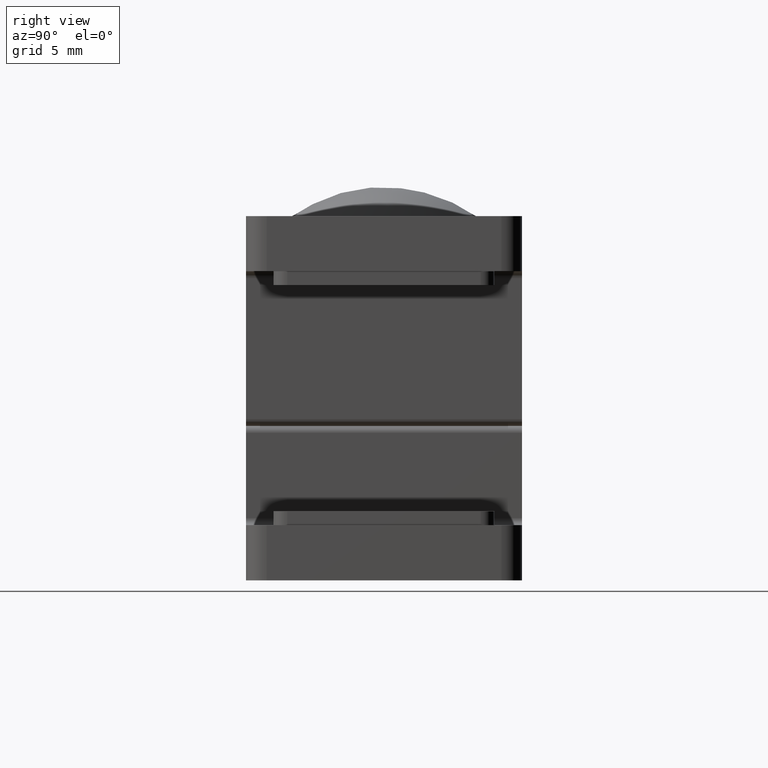
[diagram: clean part render]
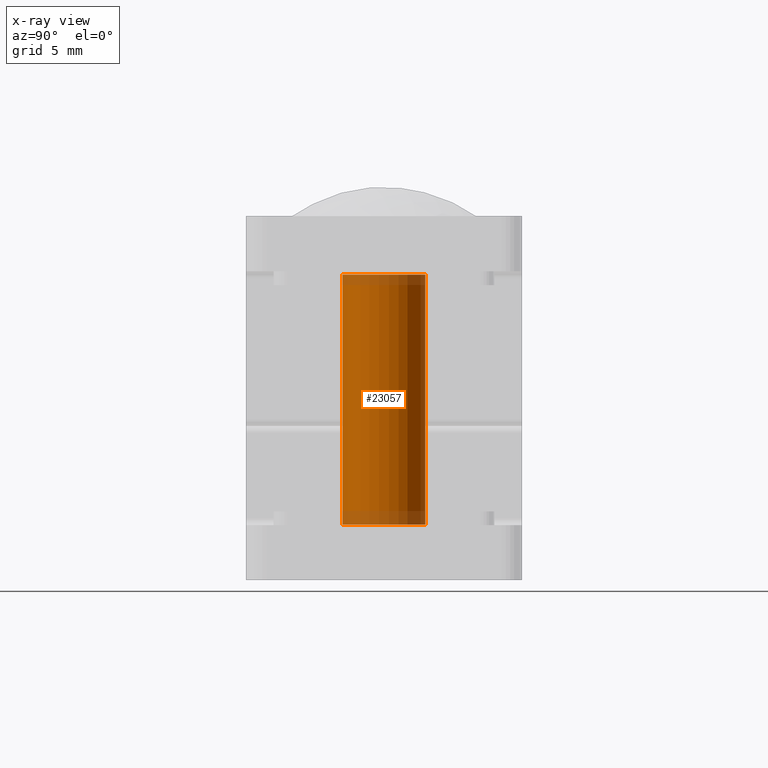
[diagram: x-ray — body ghosted, one internal face saturated and labeled with its STEP entity id]
A machine part, right view, then the same camera in x-ray: the body is ghosted and one INTERNAL B-rep face — a face not visible from any outside direction — is saturated and labeled: STEP entity #23057.
In plain terms, the highlighted cylindrical surface (bore or boss wall) has radius 3 mm, axis along (0, -0, 1).
Its self-contained STEP definition (entity closure, byte-faithful):
#336 = CARTESIAN_POINT ( 'NONE',  ( 0.000000000000000000, -2.999999999999998668, 21.40000000000000568 ) ) ;
#811 = CARTESIAN_POINT ( 'NONE',  ( 0.000000000000000000, 2.999999999999995559, 3.299999999999997158 ) ) ;
#2862 = CIRCLE ( 'NONE', #10141, 2.999999999999996003 ) ;
#3102 = EDGE_LOOP ( 'NONE', ( #17263 ) ) ;
#3540 = CIRCLE ( 'NONE', #20399, 2.999999999999996003 ) ;
#6171 = CARTESIAN_POINT ( 'NONE',  ( 0.000000000000000000, -4.041334437186261072E-16, 3.299999999999997158 ) ) ;
#7187 = EDGE_LOOP ( 'NONE', ( #32684 ) ) ;
#8570 = CARTESIAN_POINT ( 'NONE',  ( 0.000000000000000000, -2.620744150175336273E-15, 21.40000000000000568 ) ) ;
#10141 = AXIS2_PLACEMENT_3D ( 'NONE', #8570, #13197, #21573 ) ;
#13197 = DIRECTION ( 'NONE',  ( -0.000000000000000000, 1.224646799147354686E-16, -1.000000000000000000 ) ) ;
#13198 = FACE_OUTER_BOUND ( 'NONE', #3102, .T. ) ;
#15519 = EDGE_CURVE ( 'NONE', #27577, #27577, #2862, .T. ) ;
#17263 = ORIENTED_EDGE ( 'NONE', *, *, #15519, .T. ) ;
#17875 = DIRECTION ( 'NONE',  ( -0.000000000000000000, 1.224646799147353207E-16, -1.000000000000000000 ) ) ;
#18233 = DIRECTION ( 'NONE',  ( 0.000000000000000000, 1.000000000000000000, 1.224646799147353207E-16 ) ) ;
#19665 = DIRECTION ( 'NONE',  ( 0.000000000000000000, 1.000000000000000000, 1.445602896647341135E-16 ) ) ;
#20399 = AXIS2_PLACEMENT_3D ( 'NONE', #6171, #30516, #19665 ) ;
#21573 = DIRECTION ( 'NONE',  ( 0.000000000000000000, -1.000000000000000000, 0.000000000000000000 ) ) ;
#22501 = CYLINDRICAL_SURFACE ( 'NONE', #30084, 2.999999999999996003 ) ;
#23057 = ADVANCED_FACE ( 'NONE', ( #13198, #28503 ), #22501, .T. ) ;
#27376 = VERTEX_POINT ( 'NONE', #811 ) ;
#27577 = VERTEX_POINT ( 'NONE', #336 ) ;
#28503 = FACE_OUTER_BOUND ( 'NONE', #7187, .T. ) ;
#30084 = AXIS2_PLACEMENT_3D ( 'NONE', #31351, #17875, #18233 ) ;
#30516 = DIRECTION ( 'NONE',  ( -0.000000000000000000, 1.224646799147352961E-16, -1.000000000000000000 ) ) ;
#31351 = CARTESIAN_POINT ( 'NONE',  ( 0.000000000000000000, 0.000000000000000000, 0.000000000000000000 ) ) ;
#31933 = EDGE_CURVE ( 'NONE', #27376, #27376, #3540, .T. ) ;
#32684 = ORIENTED_EDGE ( 'NONE', *, *, #31933, .F. ) ;